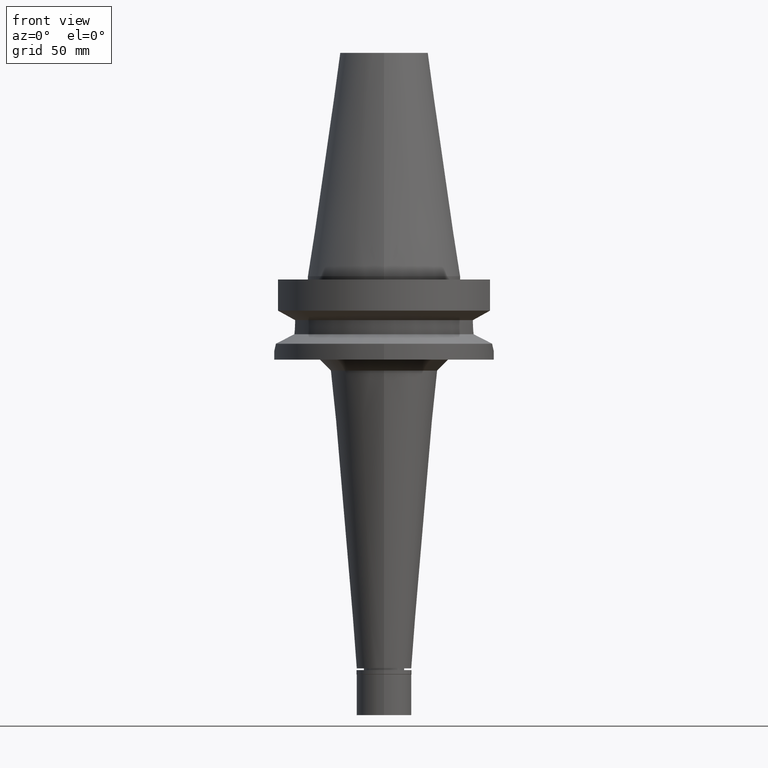
[diagram: clean part render]
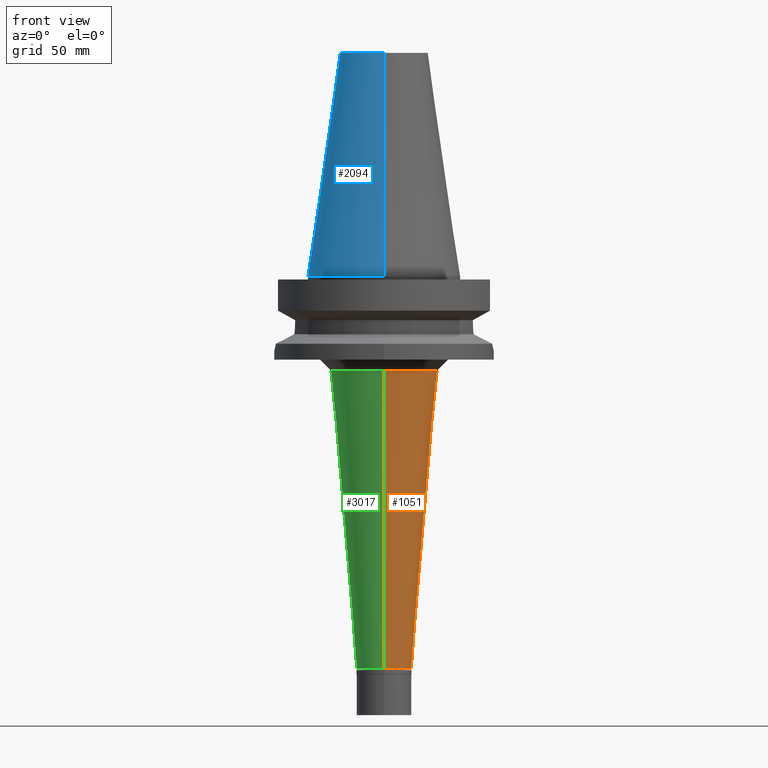
[diagram: same view with three faces highlighted in distinct colors, each labeled with its STEP entity id]
A machine part, front view with three faces highlighted in distinct colors.
Their STEP definitions:

[orange] entity #1051 — the highlighted conical surface has half-angle 5 deg.
#98 = VECTOR ( 'NONE', #1160, 1000.000000000000000 ) ;
#114 = AXIS2_PLACEMENT_3D ( 'NONE', #1140, #1666, #2920 ) ;
#297 = EDGE_CURVE ( 'NONE', #1600, #2482, #2887, .T. ) ;
#495 = CARTESIAN_POINT ( 'NONE',  ( 0.0000000000000000000, 24.37221164046999888, -43.00000000000000000 ) ) ;
#567 = EDGE_CURVE ( 'NONE', #1805, #2482, #2132, .T. ) ;
#611 = CARTESIAN_POINT ( 'NONE',  ( 0.0000000000000000000, -12.50000000000000000, -178.6999999999999886 ) ) ;
#612 = AXIS2_PLACEMENT_3D ( 'NONE', #1266, #3027, #2474 ) ;
#835 = EDGE_CURVE ( 'NONE', #2424, #1805, #2584, .T. ) ;
#878 = CARTESIAN_POINT ( 'NONE',  ( 0.0000000000000000000, -24.37221164046999888, -43.00000000000000000 ) ) ;
#1051 = ADVANCED_FACE ( 'NONE', ( #2050 ), #1759, .T. ) ;
#1140 = CARTESIAN_POINT ( 'NONE',  ( 0.0000000000000000000, 0.0000000000000000000, -43.00000000000000000 ) ) ;
#1160 = DIRECTION ( 'NONE',  ( 0.0000000000000000000, -0.08715574274767391716, -0.9961946980917442129 ) ) ;
#1266 = CARTESIAN_POINT ( 'NONE',  ( 0.0000000000000000000, 0.0000000000000000000, -110.8500000000000085 ) ) ;
#1475 = CARTESIAN_POINT ( 'NONE',  ( 0.0000000000000000000, 0.0000000000000000000, -178.6999999999999886 ) ) ;
#1555 = VECTOR ( 'NONE', #1634, 1000.000000000000000 ) ;
#1600 = VERTEX_POINT ( 'NONE', #495 ) ;
#1634 = DIRECTION ( 'NONE',  ( 0.0000000000000000000, 0.08715574274767391716, -0.9961946980917442129 ) ) ;
#1644 = ORIENTED_EDGE ( 'NONE', *, *, #567, .T. ) ;
#1666 = DIRECTION ( 'NONE',  ( 0.0000000000000000000, 0.0000000000000000000, 1.000000000000000000 ) ) ;
#1714 = AXIS2_PLACEMENT_3D ( 'NONE', #1475, #2942, #2464 ) ;
#1759 = CONICAL_SURFACE ( 'NONE', #612, 18.43610582023000077, 0.08726646259969973729 ) ;
#1805 = VERTEX_POINT ( 'NONE', #611 ) ;
#1903 = ORIENTED_EDGE ( 'NONE', *, *, #2525, .F. ) ;
#1950 = ORIENTED_EDGE ( 'NONE', *, *, #297, .F. ) ;
#1989 = ORIENTED_EDGE ( 'NONE', *, *, #835, .T. ) ;
#2050 = FACE_OUTER_BOUND ( 'NONE', #2394, .T. ) ;
#2132 = CIRCLE ( 'NONE', #1714, 12.50000000000000000 ) ;
#2394 = EDGE_LOOP ( 'NONE', ( #1903, #1989, #1644, #1950 ) ) ;
#2424 = VERTEX_POINT ( 'NONE', #3144 ) ;
#2464 = DIRECTION ( 'NONE',  ( 0.0000000000000000000, -1.000000000000000000, 0.0000000000000000000 ) ) ;
#2474 = DIRECTION ( 'NONE',  ( 0.0000000000000000000, 1.000000000000000000, 0.0000000000000000000 ) ) ;
#2482 = VERTEX_POINT ( 'NONE', #3182 ) ;
#2525 = EDGE_CURVE ( 'NONE', #2424, #1600, #2902, .T. ) ;
#2584 = LINE ( 'NONE', #878, #1555 ) ;
#2887 = LINE ( 'NONE', #3116, #98 ) ;
#2902 = CIRCLE ( 'NONE', #114, 24.37221164045999799 ) ;
#2920 = DIRECTION ( 'NONE',  ( 0.0000000000000000000, -1.000000000000000000, 0.0000000000000000000 ) ) ;
#2942 = DIRECTION ( 'NONE',  ( 0.0000000000000000000, 0.0000000000000000000, 1.000000000000000000 ) ) ;
#3027 = DIRECTION ( 'NONE',  ( 0.0000000000000000000, 0.0000000000000000000, 1.000000000000000000 ) ) ;
#3116 = CARTESIAN_POINT ( 'NONE',  ( 0.0000000000000000000, 24.37221164046999888, -43.00000000000000000 ) ) ;
#3144 = CARTESIAN_POINT ( 'NONE',  ( 0.0000000000000000000, -24.37221164046999888, -43.00000000000000000 ) ) ;
#3182 = CARTESIAN_POINT ( 'NONE',  ( 0.0000000000000000000, 12.50000000000000000, -178.6999999999999886 ) ) ;

[blue] entity #2094 — the highlighted conical surface has half-angle 8.297 deg.
#30 = CIRCLE ( 'NONE', #2719, 34.92499999999999716 ) ;
#57 = CONICAL_SURFACE ( 'NONE', #989, 27.50221485948000222, 0.1448099680379422438 ) ;
#87 = ORIENTED_EDGE ( 'NONE', *, *, #867, .F. ) ;
#90 = DIRECTION ( 'NONE',  ( 0.0000000000000000000, 0.1443043893538948075, -0.9895333461855641000 ) ) ;
#338 = ORIENTED_EDGE ( 'NONE', *, *, #2272, .T. ) ;
#363 = CARTESIAN_POINT ( 'NONE',  ( 0.0000000000000000000, 20.07942971896000017, 101.7999999999999972 ) ) ;
#375 = CARTESIAN_POINT ( 'NONE',  ( 0.0000000000000000000, -20.07942971896000017, 101.7999999999999972 ) ) ;
#466 = CARTESIAN_POINT ( 'NONE',  ( 0.0000000000000000000, 1.847992019912999597E-14, 50.89999999999999858 ) ) ;
#565 = EDGE_CURVE ( 'NONE', #1875, #1841, #3099, .T. ) ;
#574 = AXIS2_PLACEMENT_3D ( 'NONE', #2430, #1259, #2977 ) ;
#630 = CARTESIAN_POINT ( 'NONE',  ( 0.0000000000000000000, 20.07942971896000017, 101.7999999999999972 ) ) ;
#740 = DIRECTION ( 'NONE',  ( 0.0000000000000000000, 0.0000000000000000000, -1.000000000000000000 ) ) ;
#867 = EDGE_CURVE ( 'NONE', #1875, #2697, #2368, .T. ) ;
#944 = FACE_OUTER_BOUND ( 'NONE', #1547, .T. ) ;
#989 = AXIS2_PLACEMENT_3D ( 'NONE', #466, #740, #2698 ) ;
#1259 = DIRECTION ( 'NONE',  ( 0.0000000000000000000, 0.0000000000000000000, -1.000000000000000000 ) ) ;
#1356 = CARTESIAN_POINT ( 'NONE',  ( 0.0000000000000000000, -20.07942971896000017, 101.7999999999999972 ) ) ;
#1547 = EDGE_LOOP ( 'NONE', ( #2344, #87, #1711, #338 ) ) ;
#1554 = VERTEX_POINT ( 'NONE', #2182 ) ;
#1711 = ORIENTED_EDGE ( 'NONE', *, *, #565, .T. ) ;
#1824 = VECTOR ( 'NONE', #90, 1000.000000000000114 ) ;
#1841 = VERTEX_POINT ( 'NONE', #630 ) ;
#1875 = VERTEX_POINT ( 'NONE', #375 ) ;
#1898 = EDGE_CURVE ( 'NONE', #2697, #1554, #30, .T. ) ;
#2045 = CARTESIAN_POINT ( 'NONE',  ( 0.0000000000000000000, 1.847992019912999597E-14, 3.979039320256999774E-13 ) ) ;
#2061 = DIRECTION ( 'NONE',  ( 0.0000000000000000000, -1.000000000000000000, 0.0000000000000000000 ) ) ;
#2094 = ADVANCED_FACE ( 'NONE', ( #944 ), #57, .T. ) ;
#2182 = CARTESIAN_POINT ( 'NONE',  ( 0.0000000000000000000, 34.92499999999999716, 5.115907697473000027E-13 ) ) ;
#2269 = CARTESIAN_POINT ( 'NONE',  ( 0.0000000000000000000, -34.92499999999999716, 5.115907697473000027E-13 ) ) ;
#2272 = EDGE_CURVE ( 'NONE', #1841, #1554, #3031, .T. ) ;
#2344 = ORIENTED_EDGE ( 'NONE', *, *, #1898, .F. ) ;
#2368 = LINE ( 'NONE', #1356, #2537 ) ;
#2430 = CARTESIAN_POINT ( 'NONE',  ( 0.0000000000000000000, 1.847992019912999597E-14, 101.7999999999999972 ) ) ;
#2537 = VECTOR ( 'NONE', #2835, 1000.000000000000114 ) ;
#2697 = VERTEX_POINT ( 'NONE', #2269 ) ;
#2698 = DIRECTION ( 'NONE',  ( 0.0000000000000000000, -1.000000000000000000, 0.0000000000000000000 ) ) ;
#2719 = AXIS2_PLACEMENT_3D ( 'NONE', #2045, #3023, #2061 ) ;
#2835 = DIRECTION ( 'NONE',  ( 0.0000000000000000000, -0.1443043893538948075, -0.9895333461855641000 ) ) ;
#2977 = DIRECTION ( 'NONE',  ( 0.0000000000000000000, -1.000000000000000000, 0.0000000000000000000 ) ) ;
#3023 = DIRECTION ( 'NONE',  ( 0.0000000000000000000, 0.0000000000000000000, -1.000000000000000000 ) ) ;
#3031 = LINE ( 'NONE', #363, #1824 ) ;
#3099 = CIRCLE ( 'NONE', #574, 20.07942971896000017 ) ;

[green] entity #3017 — the highlighted conical surface has half-angle 5 deg.
#98 = VECTOR ( 'NONE', #1160, 1000.000000000000000 ) ;
#297 = EDGE_CURVE ( 'NONE', #1600, #2482, #2887, .T. ) ;
#419 = CARTESIAN_POINT ( 'NONE',  ( 0.0000000000000000000, 0.0000000000000000000, -178.6999999999999886 ) ) ;
#495 = CARTESIAN_POINT ( 'NONE',  ( 0.0000000000000000000, 24.37221164046999888, -43.00000000000000000 ) ) ;
#611 = CARTESIAN_POINT ( 'NONE',  ( 0.0000000000000000000, -12.50000000000000000, -178.6999999999999886 ) ) ;
#649 = CIRCLE ( 'NONE', #1426, 24.37221164046999888 ) ;
#704 = DIRECTION ( 'NONE',  ( 0.0000000000000000000, 1.000000000000000000, 0.0000000000000000000 ) ) ;
#835 = EDGE_CURVE ( 'NONE', #2424, #1805, #2584, .T. ) ;
#878 = CARTESIAN_POINT ( 'NONE',  ( 0.0000000000000000000, -24.37221164046999888, -43.00000000000000000 ) ) ;
#929 = AXIS2_PLACEMENT_3D ( 'NONE', #419, #2222, #704 ) ;
#991 = EDGE_LOOP ( 'NONE', ( #3051, #1729, #1674, #1315 ) ) ;
#1160 = DIRECTION ( 'NONE',  ( 0.0000000000000000000, -0.08715574274767391716, -0.9961946980917442129 ) ) ;
#1287 = DIRECTION ( 'NONE',  ( 0.0000000000000000000, -1.000000000000000000, 0.0000000000000000000 ) ) ;
#1315 = ORIENTED_EDGE ( 'NONE', *, *, #297, .T. ) ;
#1384 = DIRECTION ( 'NONE',  ( 0.0000000000000000000, 0.0000000000000000000, 1.000000000000000000 ) ) ;
#1426 = AXIS2_PLACEMENT_3D ( 'NONE', #2842, #1839, #1287 ) ;
#1446 = CARTESIAN_POINT ( 'NONE',  ( 0.0000000000000000000, 0.0000000000000000000, -110.8500000000000085 ) ) ;
#1555 = VECTOR ( 'NONE', #1634, 1000.000000000000000 ) ;
#1600 = VERTEX_POINT ( 'NONE', #495 ) ;
#1634 = DIRECTION ( 'NONE',  ( 0.0000000000000000000, 0.08715574274767391716, -0.9961946980917442129 ) ) ;
#1674 = ORIENTED_EDGE ( 'NONE', *, *, #1894, .T. ) ;
#1729 = ORIENTED_EDGE ( 'NONE', *, *, #835, .F. ) ;
#1805 = VERTEX_POINT ( 'NONE', #611 ) ;
#1839 = DIRECTION ( 'NONE',  ( 0.0000000000000000000, 0.0000000000000000000, -1.000000000000000000 ) ) ;
#1894 = EDGE_CURVE ( 'NONE', #2424, #1600, #649, .T. ) ;
#2105 = EDGE_CURVE ( 'NONE', #2482, #1805, #2796, .T. ) ;
#2222 = DIRECTION ( 'NONE',  ( 0.0000000000000000000, 0.0000000000000000000, 1.000000000000000000 ) ) ;
#2357 = CONICAL_SURFACE ( 'NONE', #2658, 18.43610582023000077, 0.08726646259969973729 ) ;
#2424 = VERTEX_POINT ( 'NONE', #3144 ) ;
#2482 = VERTEX_POINT ( 'NONE', #3182 ) ;
#2584 = LINE ( 'NONE', #878, #1555 ) ;
#2645 = FACE_OUTER_BOUND ( 'NONE', #991, .T. ) ;
#2658 = AXIS2_PLACEMENT_3D ( 'NONE', #1446, #1384, #2662 ) ;
#2662 = DIRECTION ( 'NONE',  ( 0.0000000000000000000, 1.000000000000000000, 0.0000000000000000000 ) ) ;
#2796 = CIRCLE ( 'NONE', #929, 12.50000000000000000 ) ;
#2842 = CARTESIAN_POINT ( 'NONE',  ( 0.0000000000000000000, 0.0000000000000000000, -43.00000000000000000 ) ) ;
#2887 = LINE ( 'NONE', #3116, #98 ) ;
#3017 = ADVANCED_FACE ( 'NONE', ( #2645 ), #2357, .T. ) ;
#3051 = ORIENTED_EDGE ( 'NONE', *, *, #2105, .T. ) ;
#3116 = CARTESIAN_POINT ( 'NONE',  ( 0.0000000000000000000, 24.37221164046999888, -43.00000000000000000 ) ) ;
#3144 = CARTESIAN_POINT ( 'NONE',  ( 0.0000000000000000000, -24.37221164046999888, -43.00000000000000000 ) ) ;
#3182 = CARTESIAN_POINT ( 'NONE',  ( 0.0000000000000000000, 12.50000000000000000, -178.6999999999999886 ) ) ;